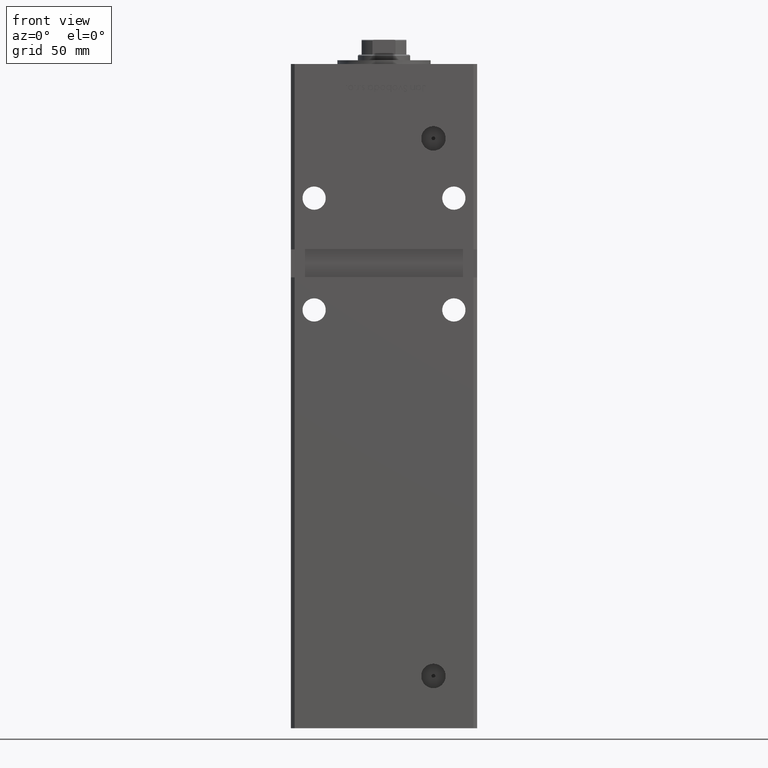
[diagram: clean part render]
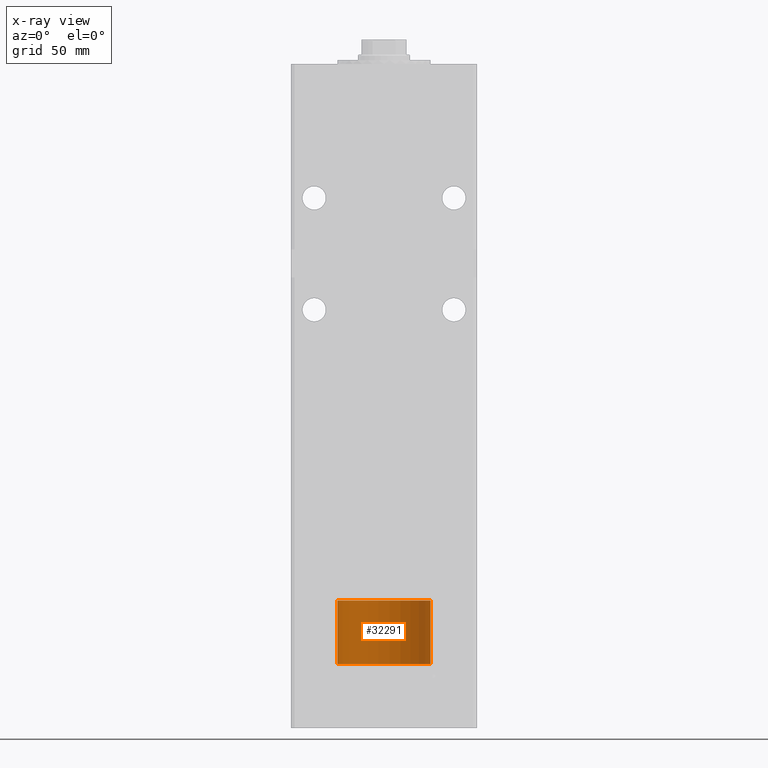
[diagram: x-ray — body ghosted, one internal face saturated and labeled with its STEP entity id]
A machine part, front view, then the same camera in x-ray: the body is ghosted and one INTERNAL B-rep face — a face not visible from any outside direction — is saturated and labeled: STEP entity #32291.
In plain terms, the highlighted cylindrical surface (partial cylindrical patch) has radius 25 mm, axis along (-0, -0, -1).
Its self-contained STEP definition (entity closure, byte-faithful):
#472 = VERTEX_POINT ( 'NONE', #27519 ) ;
#1060 = AXIS2_PLACEMENT_3D ( 'NONE', #8105, #32554, #24480 ) ;
#1562 = VECTOR ( 'NONE', #14946, 1000.000000000000000 ) ;
#2830 = CARTESIAN_POINT ( 'NONE',  ( 25.00000000000000000, 3.061616997868383043E-15, 34.25000000000000000 ) ) ;
#3766 = AXIS2_PLACEMENT_3D ( 'NONE', #44743, #49599, #45018 ) ;
#4438 = ORIENTED_EDGE ( 'NONE', *, *, #19901, .F. ) ;
#4481 = CARTESIAN_POINT ( 'NONE',  ( 25.00000000000000000, 3.061616997868383043E-15, 0.000000000000000000 ) ) ;
#4528 = EDGE_CURVE ( 'NONE', #472, #48479, #35629, .T. ) ;
#8105 = CARTESIAN_POINT ( 'NONE',  ( 0.000000000000000000, 0.000000000000000000, 34.25000000000000000 ) ) ;
#10338 = CARTESIAN_POINT ( 'NONE',  ( 25.00000000000000000, 3.061616997868383043E-15, 34.25000000000000000 ) ) ;
#10421 = VERTEX_POINT ( 'NONE', #4481 ) ;
#12216 = EDGE_LOOP ( 'NONE', ( #4438, #35073, #22297, #23176 ) ) ;
#14946 = DIRECTION ( 'NONE',  ( -0.000000000000000000, -0.000000000000000000, -1.000000000000000000 ) ) ;
#15550 = EDGE_CURVE ( 'NONE', #10421, #48479, #48962, .T. ) ;
#16530 = FACE_OUTER_BOUND ( 'NONE', #12216, .T. ) ;
#17681 = DIRECTION ( 'NONE',  ( 0.000000000000000000, 0.000000000000000000, 1.000000000000000000 ) ) ;
#18200 = CARTESIAN_POINT ( 'NONE',  ( 0.000000000000000000, 0.000000000000000000, 0.000000000000000000 ) ) ;
#19901 = EDGE_CURVE ( 'NONE', #28283, #472, #49971, .T. ) ;
#22297 = ORIENTED_EDGE ( 'NONE', *, *, #15550, .T. ) ;
#23176 = ORIENTED_EDGE ( 'NONE', *, *, #4528, .F. ) ;
#24480 = DIRECTION ( 'NONE',  ( 1.000000000000000000, 0.000000000000000000, 0.000000000000000000 ) ) ;
#27519 = CARTESIAN_POINT ( 'NONE',  ( -25.00000000000000000, 0.000000000000000000, 34.25000000000000000 ) ) ;
#28283 = VERTEX_POINT ( 'NONE', #10338 ) ;
#30033 = DIRECTION ( 'NONE',  ( 1.000000000000000000, 0.000000000000000000, 0.000000000000000000 ) ) ;
#31335 = EDGE_CURVE ( 'NONE', #28283, #10421, #36139, .T. ) ;
#32110 = DIRECTION ( 'NONE',  ( -0.000000000000000000, -0.000000000000000000, -1.000000000000000000 ) ) ;
#32291 = ADVANCED_FACE ( 'NONE', ( #16530 ), #53094, .T. ) ;
#32554 = DIRECTION ( 'NONE',  ( 0.000000000000000000, 0.000000000000000000, 1.000000000000000000 ) ) ;
#35073 = ORIENTED_EDGE ( 'NONE', *, *, #31335, .T. ) ;
#35371 = CARTESIAN_POINT ( 'NONE',  ( -25.00000000000000000, 0.000000000000000000, 34.25000000000000000 ) ) ;
#35485 = VECTOR ( 'NONE', #32110, 1000.000000000000000 ) ;
#35629 = LINE ( 'NONE', #35371, #1562 ) ;
#36139 = LINE ( 'NONE', #2830, #35485 ) ;
#44743 = CARTESIAN_POINT ( 'NONE',  ( 0.000000000000000000, 0.000000000000000000, 34.25000000000000000 ) ) ;
#45018 = DIRECTION ( 'NONE',  ( -1.000000000000000000, 0.000000000000000000, 0.000000000000000000 ) ) ;
#48479 = VERTEX_POINT ( 'NONE', #51424 ) ;
#48962 = CIRCLE ( 'NONE', #50696, 25.00000000000000000 ) ;
#49599 = DIRECTION ( 'NONE',  ( -0.000000000000000000, -0.000000000000000000, -1.000000000000000000 ) ) ;
#49971 = CIRCLE ( 'NONE', #1060, 25.00000000000000000 ) ;
#50696 = AXIS2_PLACEMENT_3D ( 'NONE', #18200, #17681, #30033 ) ;
#51424 = CARTESIAN_POINT ( 'NONE',  ( -25.00000000000000000, 0.000000000000000000, 0.000000000000000000 ) ) ;
#53094 = CYLINDRICAL_SURFACE ( 'NONE', #3766, 25.00000000000000000 ) ;